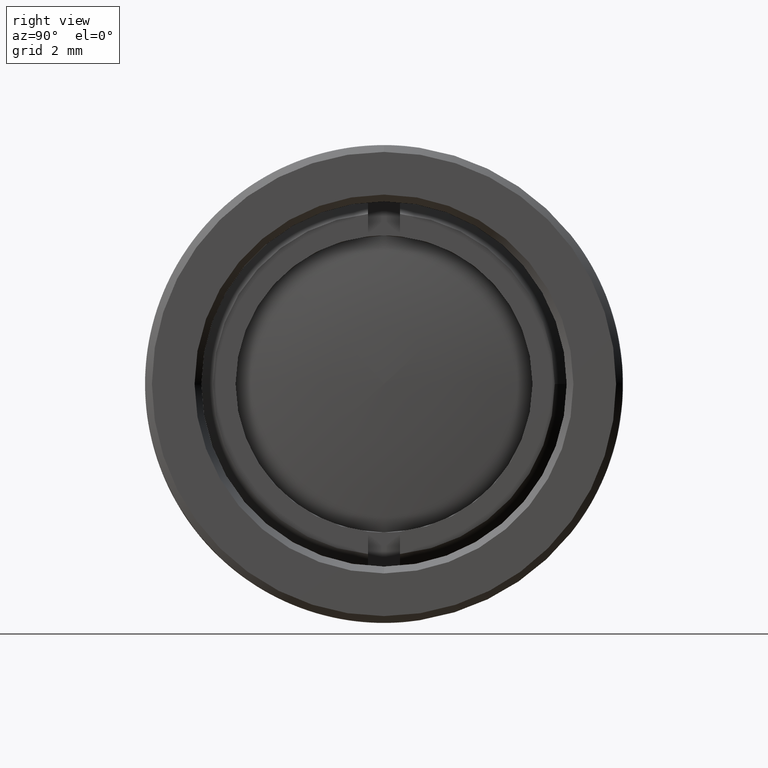
[diagram: clean part render]
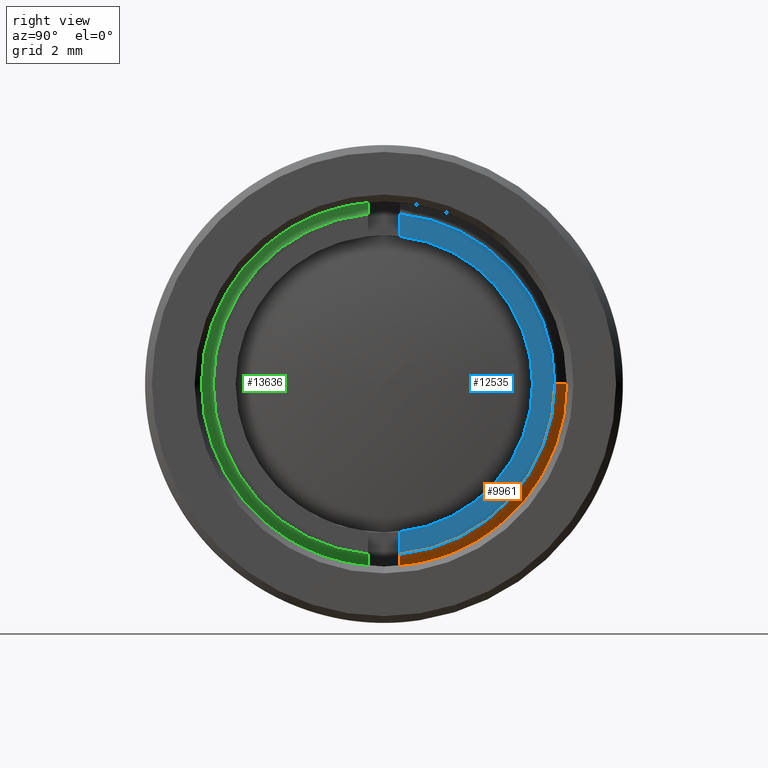
[diagram: same view with three faces highlighted in distinct colors, each labeled with its STEP entity id]
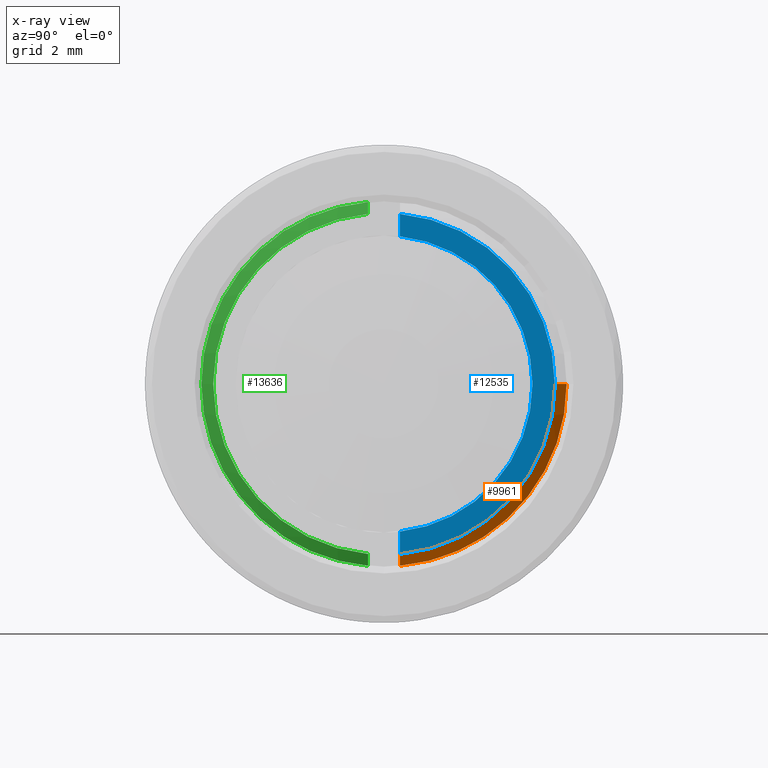
[diagram: x-ray of the same camera — body ghosted, the three highlighted faces saturated]
A machine part, right view with three faces highlighted in distinct colors.
The next image is the same camera in x-ray (body ghosted, the three faces saturated) — at least one of them is partly hidden behind the body in this view.
Their STEP definitions:

[orange] entity #9961 — the highlighted conical surface has half-angle 60 deg.
#650 = DIRECTION ( 'NONE',  ( 1.364944011123595000E-016, 1.000000000000000000, 1.224646799147353000E-016 ) ) ;
#1162 = DIRECTION ( 'NONE',  ( -1.000000000000000000, 1.814574754612633700E-016, 1.860420394511413300E-017 ) ) ;
#1467 = CONICAL_SURFACE ( 'NONE', #12137, 6.354559094877514800, 1.047197551196599200 ) ;
#1479 = ORIENTED_EDGE ( 'NONE', *, *, #11187, .F. ) ;
#2550 = VERTEX_POINT ( 'NONE', #5074 ) ;
#2702 = LINE ( 'NONE', #3837, #8378 ) ;
#3257 = CARTESIAN_POINT ( 'NONE',  ( 6.347119933267197000, 6.354559094877499700, 3.222057832197512200E-015 ) ) ;
#3354 = CARTESIAN_POINT ( 'NONE',  ( 6.262471596460349200, 0.5968999999999860000, -6.473729158595795700 ) ) ;
#3837 = CARTESIAN_POINT ( 'NONE',  ( 6.347119933267197000, 6.354559094877499700, 3.192756487232870900E-015 ) ) ;
#4386 = CARTESIAN_POINT ( 'NONE',  ( 6.177803739382456500, 0.5968999999999860000, -6.620984288593826200 ) ) ;
#4647 = CARTESIAN_POINT ( 'NONE',  ( 6.347119933267196100, -1.478072027725997100E-014, 2.414547441679425900E-015 ) ) ;
#5074 = CARTESIAN_POINT ( 'NONE',  ( 6.347119933267196100, 0.5968999999999860000, -6.326462809524016100 ) ) ;
#5162 = ORIENTED_EDGE ( 'NONE', *, *, #9148, .F. ) ;
#5296 = AXIS2_PLACEMENT_3D ( 'NONE', #4647, #12555, #5783 ) ;
#5757 = CIRCLE ( 'NONE', #6694, 6.794500000000002000 ) ;
#5783 = DIRECTION ( 'NONE',  ( -1.364944011123595000E-016, -1.000000000000000000, -1.224646799147353000E-016 ) ) ;
#6694 = AXIS2_PLACEMENT_3D ( 'NONE', #7929, #1162, #9073 ) ;
#7527 = DIRECTION ( 'NONE',  ( -1.000000000000000000, 1.814574754612633700E-016, 1.860420394511413300E-017 ) ) ;
#7849 = FACE_OUTER_BOUND ( 'NONE', #9650, .T. ) ;
#7929 = CARTESIAN_POINT ( 'NONE',  ( 6.093119933267201900, -1.473463007849281200E-014, 2.419272909481484700E-015 ) ) ;
#8285 = CARTESIAN_POINT ( 'NONE',  ( 6.093119933267201900, 0.5968999999999860000, -6.768230244310546000 ) ) ;
#8378 = VECTOR ( 'NONE', #10617, 1000.000000000000100 ) ;
#9073 = DIRECTION ( 'NONE',  ( -1.276564483020683500E-016, -1.000000000000000000, -1.224646799147352700E-016 ) ) ;
#9148 = EDGE_CURVE ( 'NONE', #10408, #10871, #2702, .T. ) ;
#9362 = EDGE_CURVE ( 'NONE', #2550, #10408, #12980, .T. ) ;
#9468 = VERTEX_POINT ( 'NONE', #8285 ) ;
#9650 = EDGE_LOOP ( 'NONE', ( #5162, #10425, #1479, #14323 ) ) ;
#9961 = ADVANCED_FACE ( 'NONE', ( #7849 ), #1467, .T. ) ;
#10075 = CARTESIAN_POINT ( 'NONE',  ( 6.093119933267202800, 6.794499999999986900, 3.261991479716786800E-015 ) ) ;
#10408 = VERTEX_POINT ( 'NONE', #3257 ) ;
#10425 = ORIENTED_EDGE ( 'NONE', *, *, #9362, .F. ) ;
#10617 = DIRECTION ( 'NONE',  ( -0.4999999999999985000, 0.8660254037844394800, 1.153596258450478000E-016 ) ) ;
#10871 = VERTEX_POINT ( 'NONE', #10075 ) ;
#11187 = EDGE_CURVE ( 'NONE', #9468, #2550, #12543, .T. ) ;
#11277 = CARTESIAN_POINT ( 'NONE',  ( 6.347119933267196100, 0.5968999999999860000, -6.326462809524016100 ) ) ;
#11708 = EDGE_CURVE ( 'NONE', #10871, #9468, #5757, .T. ) ;
#12137 = AXIS2_PLACEMENT_3D ( 'NONE', #14292, #7527, #650 ) ;
#12283 = CARTESIAN_POINT ( 'NONE',  ( 6.093119933267201900, 0.5968999999999860000, -6.768230244310546000 ) ) ;
#12543 = B_SPLINE_CURVE_WITH_KNOTS ( 'NONE', 3,
 ( #12283, #4386, #3354, #11277 ),
 .UNSPECIFIED., .F., .F.,
 ( 4, 4 ),
 ( 0.0000000000000000000, 0.0005095826394588693900 ),
 .UNSPECIFIED. ) ;
#12555 = DIRECTION ( 'NONE',  ( 1.000000000000000000, -1.814574754612633700E-016, -1.860420394511413300E-017 ) ) ;
#12980 = CIRCLE ( 'NONE', #5296, 6.354559094877514800 ) ;
#14292 = CARTESIAN_POINT ( 'NONE',  ( 6.347119933267196100, -1.478072027725997100E-014, 2.414547441679425900E-015 ) ) ;
#14323 = ORIENTED_EDGE ( 'NONE', *, *, #11708, .F. ) ;

[blue] entity #12535 — the highlighted planar face has unit normal (1, -0, -0).
#495 = EDGE_CURVE ( 'NONE', #13932, #9657, #902, .T. ) ;
#902 = CIRCLE ( 'NONE', #9840, 5.524499999999999700 ) ;
#976 = ORIENTED_EDGE ( 'NONE', *, *, #12390, .T. ) ;
#1883 = CARTESIAN_POINT ( 'NONE',  ( 6.347119933267196100, -1.478072027725997100E-014, 2.414547441679425900E-015 ) ) ;
#2146 = VERTEX_POINT ( 'NONE', #13109 ) ;
#2183 = CIRCLE ( 'NONE', #8313, 5.524499999999999700 ) ;
#2550 = VERTEX_POINT ( 'NONE', #5074 ) ;
#3011 = DIRECTION ( 'NONE',  ( 1.000000000000000000, -1.814574754612633700E-016, -1.860420394511413300E-017 ) ) ;
#3028 = DIRECTION ( 'NONE',  ( -1.570027582565668500E-016, -1.000000000000000000, -1.224646799147353000E-016 ) ) ;
#3257 = CARTESIAN_POINT ( 'NONE',  ( 6.347119933267197000, 6.354559094877499700, 3.222057832197512200E-015 ) ) ;
#3269 = ORIENTED_EDGE ( 'NONE', *, *, #9362, .T. ) ;
#3632 = CARTESIAN_POINT ( 'NONE',  ( 6.347119933267196100, 0.5968999999999860000, -5.492159014449597100 ) ) ;
#3718 = ORIENTED_EDGE ( 'NONE', *, *, #6877, .F. ) ;
#4341 = LINE ( 'NONE', #9522, #6250 ) ;
#4512 = CARTESIAN_POINT ( 'NONE',  ( 6.347119933267196100, -1.478072027725997100E-014, 2.414547441679425900E-015 ) ) ;
#4647 = CARTESIAN_POINT ( 'NONE',  ( 6.347119933267196100, -1.478072027725997100E-014, 2.414547441679425900E-015 ) ) ;
#4757 = DIRECTION ( 'NONE',  ( 1.860420394511414200E-017, 4.746347881409169500E-017, 1.000000000000000000 ) ) ;
#4951 = CARTESIAN_POINT ( 'NONE',  ( 6.347119933267196100, -1.478072027725997100E-014, 2.414547441679425900E-015 ) ) ;
#5074 = CARTESIAN_POINT ( 'NONE',  ( 6.347119933267196100, 0.5968999999999860000, -6.326462809524016100 ) ) ;
#5296 = AXIS2_PLACEMENT_3D ( 'NONE', #4647, #12555, #5783 ) ;
#5783 = DIRECTION ( 'NONE',  ( -1.364944011123595000E-016, -1.000000000000000000, -1.224646799147353000E-016 ) ) ;
#5839 = CARTESIAN_POINT ( 'NONE',  ( 6.347119933267196100, 0.5968999999999860000, -6.768230244310546000 ) ) ;
#6086 = DIRECTION ( 'NONE',  ( -1.570027582565668500E-016, -1.000000000000000000, -1.224646799147353000E-016 ) ) ;
#6250 = VECTOR ( 'NONE', #12939, 1000.000000000000000 ) ;
#6392 = CARTESIAN_POINT ( 'NONE',  ( 6.347119933267197000, 5.524499999999985500, 3.106461336225072700E-015 ) ) ;
#6636 = CIRCLE ( 'NONE', #12757, 6.354559094877514800 ) ;
#6754 = DIRECTION ( 'NONE',  ( 1.000000000000000000, -1.814574754612633700E-016, -1.860420394511413300E-017 ) ) ;
#6877 = EDGE_CURVE ( 'NONE', #2550, #9819, #13710, .T. ) ;
#7464 = ORIENTED_EDGE ( 'NONE', *, *, #495, .F. ) ;
#7595 = CARTESIAN_POINT ( 'NONE',  ( 6.347119933267196100, 0.5968999999999847800, 5.492159014449602400 ) ) ;
#7711 = VECTOR ( 'NONE', #4757, 1000.000000000000000 ) ;
#7860 = PLANE ( 'NONE',  #8702 ) ;
#8313 = AXIS2_PLACEMENT_3D ( 'NONE', #1883, #9809, #3028 ) ;
#8702 = AXIS2_PLACEMENT_3D ( 'NONE', #4512, #6754, #14674 ) ;
#9362 = EDGE_CURVE ( 'NONE', #2550, #10408, #12980, .T. ) ;
#9522 = CARTESIAN_POINT ( 'NONE',  ( 6.347119933267196100, 0.5968999999999843300, 6.768230244310551300 ) ) ;
#9554 = EDGE_CURVE ( 'NONE', #9657, #2146, #4341, .T. ) ;
#9657 = VERTEX_POINT ( 'NONE', #7595 ) ;
#9792 = CARTESIAN_POINT ( 'NONE',  ( 6.347119933267196100, -1.478072027725997100E-014, 2.414547441679425900E-015 ) ) ;
#9809 = DIRECTION ( 'NONE',  ( 1.000000000000000000, -1.814574754612633700E-016, -1.860420394511413300E-017 ) ) ;
#9819 = VERTEX_POINT ( 'NONE', #3632 ) ;
#9840 = AXIS2_PLACEMENT_3D ( 'NONE', #4951, #12858, #6086 ) ;
#9959 = EDGE_CURVE ( 'NONE', #9819, #13932, #2183, .T. ) ;
#10408 = VERTEX_POINT ( 'NONE', #3257 ) ;
#10622 = EDGE_LOOP ( 'NONE', ( #3718, #3269, #976, #11902, #7464, #14291 ) ) ;
#10932 = DIRECTION ( 'NONE',  ( -1.364944011123595000E-016, -1.000000000000000000, -1.224646799147353000E-016 ) ) ;
#11902 = ORIENTED_EDGE ( 'NONE', *, *, #9554, .F. ) ;
#12390 = EDGE_CURVE ( 'NONE', #10408, #2146, #6636, .T. ) ;
#12535 = ADVANCED_FACE ( 'NONE', ( #14229 ), #7860, .T. ) ;
#12555 = DIRECTION ( 'NONE',  ( 1.000000000000000000, -1.814574754612633700E-016, -1.860420394511413300E-017 ) ) ;
#12757 = AXIS2_PLACEMENT_3D ( 'NONE', #9792, #3011, #10932 ) ;
#12858 = DIRECTION ( 'NONE',  ( 1.000000000000000000, -1.814574754612633700E-016, -1.860420394511413300E-017 ) ) ;
#12939 = DIRECTION ( 'NONE',  ( 1.860420394511408100E-017, -2.923928386435623900E-016, 1.000000000000000000 ) ) ;
#12980 = CIRCLE ( 'NONE', #5296, 6.354559094877514800 ) ;
#13109 = CARTESIAN_POINT ( 'NONE',  ( 6.347119933267196100, 0.5968999999999845500, 6.326462809524021400 ) ) ;
#13710 = LINE ( 'NONE', #5839, #7711 ) ;
#13932 = VERTEX_POINT ( 'NONE', #6392 ) ;
#14229 = FACE_OUTER_BOUND ( 'NONE', #10622, .T. ) ;
#14291 = ORIENTED_EDGE ( 'NONE', *, *, #9959, .F. ) ;
#14674 = DIRECTION ( 'NONE',  ( -1.814574754612633700E-016, -1.000000000000000000, -1.224646799147353000E-016 ) ) ;

[green] entity #13636 — the highlighted conical surface has half-angle 60 deg.
#525 = DIRECTION ( 'NONE',  ( -1.000000000000000000, 1.814574754612633700E-016, 1.860420394511413300E-017 ) ) ;
#1103 = DIRECTION ( 'NONE',  ( -1.364944011123595000E-016, -1.000000000000000000, -1.224646799147353000E-016 ) ) ;
#1229 = EDGE_LOOP ( 'NONE', ( #6179, #11383, #5936, #8712, #2917 ) ) ;
#1304 = AXIS2_PLACEMENT_3D ( 'NONE', #4633, #13575, #12542 ) ;
#1392 = CARTESIAN_POINT ( 'NONE',  ( 6.093119933267201000, -6.794500000000017100, 7.657326766747792400E-016 ) ) ;
#1652 = CARTESIAN_POINT ( 'NONE',  ( 6.262471596460349200, -0.5969000000000155300, 6.473729158595801000 ) ) ;
#1693 = EDGE_CURVE ( 'NONE', #9285, #14027, #9916, .T. ) ;
#2538 = EDGE_CURVE ( 'NONE', #13161, #9285, #8232, .T. ) ;
#2599 = CARTESIAN_POINT ( 'NONE',  ( 6.347119933267196100, -0.5969000000000139700, -6.326462809524016100 ) ) ;
#2917 = ORIENTED_EDGE ( 'NONE', *, *, #1693, .F. ) ;
#3485 = AXIS2_PLACEMENT_3D ( 'NONE', #7293, #525, #8441 ) ;
#3659 = AXIS2_PLACEMENT_3D ( 'NONE', #12399, #5617, #13522 ) ;
#3936 = CARTESIAN_POINT ( 'NONE',  ( 6.093119933267201900, -0.5969000000000155300, 6.768230244310551300 ) ) ;
#4633 = CARTESIAN_POINT ( 'NONE',  ( 6.347119933267196100, -1.478072027725997100E-014, 2.414547441679425900E-015 ) ) ;
#4878 = VERTEX_POINT ( 'NONE', #1392 ) ;
#5617 = DIRECTION ( 'NONE',  ( -1.000000000000000000, 1.814574754612633700E-016, 1.860420394511413300E-017 ) ) ;
#5648 = CARTESIAN_POINT ( 'NONE',  ( 6.093119933267201900, -0.5969000000000137500, -6.768230244310546000 ) ) ;
#5936 = ORIENTED_EDGE ( 'NONE', *, *, #6315, .F. ) ;
#6179 = ORIENTED_EDGE ( 'NONE', *, *, #2538, .F. ) ;
#6315 = EDGE_CURVE ( 'NONE', #8357, #4878, #6916, .T. ) ;
#6645 = CARTESIAN_POINT ( 'NONE',  ( 6.347119933267196100, -0.5969000000000139700, -6.326462809524016100 ) ) ;
#6916 = CIRCLE ( 'NONE', #3659, 6.794500000000002000 ) ;
#7293 = CARTESIAN_POINT ( 'NONE',  ( 6.093119933267201900, -1.473463007849281200E-014, 2.419272909481484700E-015 ) ) ;
#7883 = DIRECTION ( 'NONE',  ( 1.000000000000000000, -1.814574754612633700E-016, -1.860420394511413300E-017 ) ) ;
#8232 = B_SPLINE_CURVE_WITH_KNOTS ( 'NONE', 3,
 ( #3936, #10468, #1652, #11861 ),
 .UNSPECIFIED., .F., .F.,
 ( 4, 4 ),
 ( 0.0000000000000000000, 0.0005095826394588693900 ),
 .UNSPECIFIED. ) ;
#8357 = VERTEX_POINT ( 'NONE', #11897 ) ;
#8441 = DIRECTION ( 'NONE',  ( -1.276564483020683500E-016, -1.000000000000000000, -1.224646799147352700E-016 ) ) ;
#8500 = EDGE_CURVE ( 'NONE', #14027, #8357, #12879, .T. ) ;
#8712 = ORIENTED_EDGE ( 'NONE', *, *, #8500, .F. ) ;
#9285 = VERTEX_POINT ( 'NONE', #14440 ) ;
#9916 = CIRCLE ( 'NONE', #13213, 6.354559094877514800 ) ;
#10282 = EDGE_CURVE ( 'NONE', #4878, #13161, #11737, .T. ) ;
#10468 = CARTESIAN_POINT ( 'NONE',  ( 6.177803739382456500, -0.5969000000000155300, 6.620984288593830600 ) ) ;
#11290 = CARTESIAN_POINT ( 'NONE',  ( 6.262471596460349200, -0.5969000000000138600, -6.473729158595795700 ) ) ;
#11383 = ORIENTED_EDGE ( 'NONE', *, *, #10282, .F. ) ;
#11578 = CONICAL_SURFACE ( 'NONE', #1304, 6.354559094877514800, 1.047197551196599200 ) ;
#11737 = CIRCLE ( 'NONE', #3485, 6.794500000000002000 ) ;
#11861 = CARTESIAN_POINT ( 'NONE',  ( 6.347119933267196100, -0.5969000000000155300, 6.326462809524021400 ) ) ;
#11897 = CARTESIAN_POINT ( 'NONE',  ( 6.093119933267201900, -0.5969000000000137500, -6.768230244310546000 ) ) ;
#11931 = FACE_OUTER_BOUND ( 'NONE', #1229, .T. ) ;
#12399 = CARTESIAN_POINT ( 'NONE',  ( 6.093119933267201900, -1.473463007849281200E-014, 2.419272909481484700E-015 ) ) ;
#12433 = CARTESIAN_POINT ( 'NONE',  ( 6.177803739382456500, -0.5969000000000138600, -6.620984288593826200 ) ) ;
#12542 = DIRECTION ( 'NONE',  ( 1.364944011123595000E-016, 1.000000000000000000, 1.224646799147353000E-016 ) ) ;
#12879 = B_SPLINE_CURVE_WITH_KNOTS ( 'NONE', 3,
 ( #6645, #11290, #12433, #5648 ),
 .UNSPECIFIED., .F., .F.,
 ( 4, 4 ),
 ( 0.0000000000000000000, 0.0005095826394588693900 ),
 .UNSPECIFIED. ) ;
#13161 = VERTEX_POINT ( 'NONE', #13358 ) ;
#13213 = AXIS2_PLACEMENT_3D ( 'NONE', #14641, #7883, #1103 ) ;
#13358 = CARTESIAN_POINT ( 'NONE',  ( 6.093119933267201900, -0.5969000000000155300, 6.768230244310551300 ) ) ;
#13522 = DIRECTION ( 'NONE',  ( -1.276564483020683500E-016, -1.000000000000000000, -1.224646799147352700E-016 ) ) ;
#13575 = DIRECTION ( 'NONE',  ( -1.000000000000000000, 1.814574754612633700E-016, 1.860420394511413300E-017 ) ) ;
#13636 = ADVANCED_FACE ( 'NONE', ( #11931 ), #11578, .T. ) ;
#14027 = VERTEX_POINT ( 'NONE', #2599 ) ;
#14440 = CARTESIAN_POINT ( 'NONE',  ( 6.347119933267196100, -0.5969000000000155300, 6.326462809524021400 ) ) ;
#14641 = CARTESIAN_POINT ( 'NONE',  ( 6.347119933267196100, -1.478072027725997100E-014, 2.414547441679425900E-015 ) ) ;